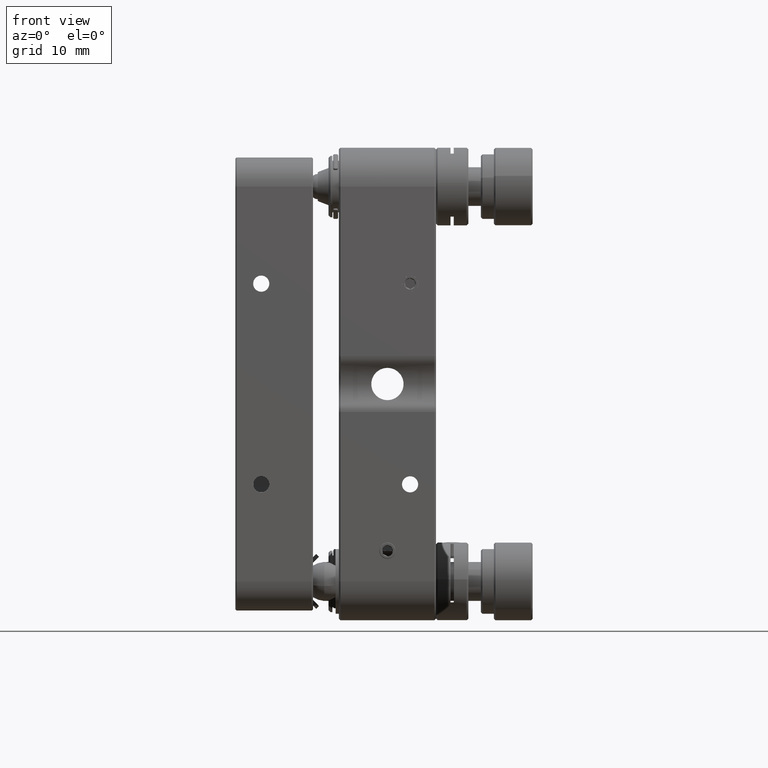
[diagram: clean part render]
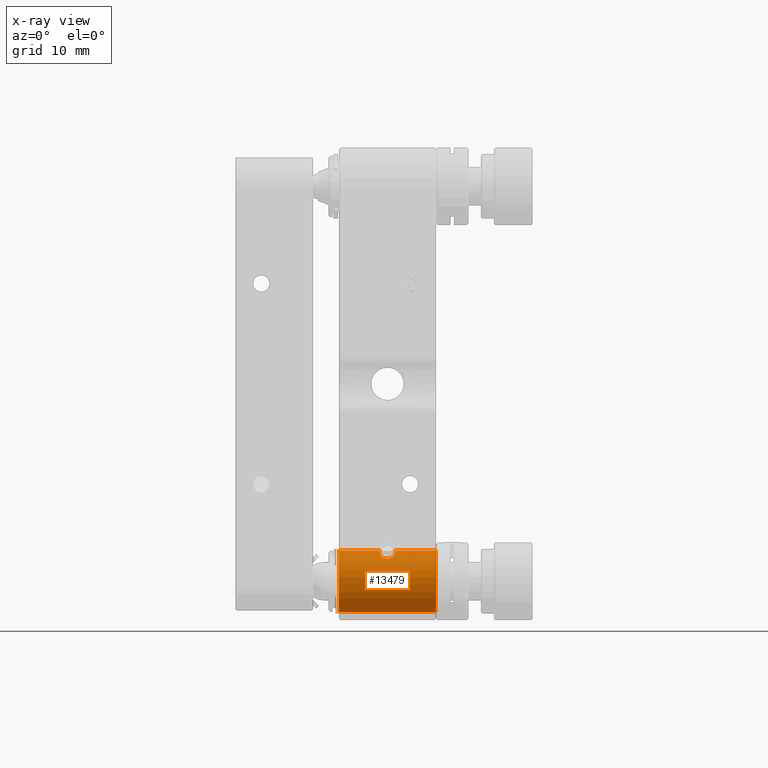
[diagram: x-ray — body ghosted, one internal face saturated and labeled with its STEP entity id]
A machine part, front view, then the same camera in x-ray: the body is ghosted and one INTERNAL B-rep face — a face not visible from any outside direction — is saturated and labeled: STEP entity #13479.
In plain terms, the highlighted cylindrical surface (edge-blend (fillet) strip) has radius 4.75 mm, axis along (1, -0, -0).
Its self-contained STEP definition (entity closure, byte-faithful):
#6 = LINE ( 'NONE', #6885, #7865 ) ;
#104 = CARTESIAN_POINT ( 'NONE',  ( -0.4756193229141988943, -31.81707137695323340, 21.50000000000000000 ) ) ;
#399 = ORIENTED_EDGE ( 'NONE', *, *, #3357, .T. ) ;
#731 = ORIENTED_EDGE ( 'NONE', *, *, #4242, .T. ) ;
#954 = CARTESIAN_POINT ( 'NONE',  ( 8.266447908790146570, -32.99478359527260096, 26.10480191768682445 ) ) ;
#971 = DIRECTION ( 'NONE',  ( 0.000000000000000000, 0.000000000000000000, -1.000000000000000000 ) ) ;
#1287 = CARTESIAN_POINT ( 'NONE',  ( 8.274380677085797942, -31.81707137695322629, 26.24999999999999645 ) ) ;
#1383 = CARTESIAN_POINT ( 'NONE',  ( 5.772816409324978082, -32.49844991003594430, 26.21310298393942162 ) ) ;
#1457 = CARTESIAN_POINT ( 'NONE',  ( 6.937474785350574713, -35.02837952161953439, 25.00000000000000355 ) ) ;
#1501 = CYLINDRICAL_SURFACE ( 'NONE', #7667, 4.749999999999997335 ) ;
#1508 = EDGE_CURVE ( 'NONE', #13158, #5419, #6, .T. ) ;
#1837 = DIRECTION ( 'NONE',  ( 1.000000000000000000, 0.000000000000000000, 0.000000000000000000 ) ) ;
#2022 = VECTOR ( 'NONE', #7926, 1000.000000000000000 ) ;
#2033 = CARTESIAN_POINT ( 'NONE',  ( -0.4756193229141988943, -31.81707137695323340, 26.24999999999999645 ) ) ;
#2197 = CARTESIAN_POINT ( 'NONE',  ( 7.367683017740924711, -34.98809704542016163, 25.03779354777339705 ) ) ;
#2471 = CARTESIAN_POINT ( 'NONE',  ( 14.52438067708579972, -31.81707137695323340, 16.75000000000000000 ) ) ;
#2515 = FACE_OUTER_BOUND ( 'NONE', #10598, .T. ) ;
#2552 = CARTESIAN_POINT ( 'NONE',  ( 5.877621971035821957, -33.95123944907304292, 25.74692563983460403 ) ) ;
#2637 = CARTESIAN_POINT ( 'NONE',  ( 5.913791038854941284, -34.10118877958147721, 25.66796418528802803 ) ) ;
#2716 = CARTESIAN_POINT ( 'NONE',  ( 5.774380677085802382, -31.81707137695322629, 26.24999999999999645 ) ) ;
#2791 = CARTESIAN_POINT ( 'NONE',  ( 5.774380677085807712, -32.16085358018470686, 26.24999999999999289 ) ) ;
#2798 = EDGE_CURVE ( 'NONE', #9518, #4068, #9833, .T. ) ;
#3213 = CARTESIAN_POINT ( 'NONE',  ( -0.4756193229141988943, -31.81707137695323340, 16.75000000000000000 ) ) ;
#3221 = CARTESIAN_POINT ( 'NONE',  ( 8.274380677085895641, -32.16080366972634863, 26.24999999999999289 ) ) ;
#3357 = EDGE_CURVE ( 'NONE', #4571, #13158, #6024, .T. ) ;
#3691 = DIRECTION ( 'NONE',  ( 1.000000000000000000, -0.000000000000000000, -0.000000000000000000 ) ) ;
#3802 = CARTESIAN_POINT ( 'NONE',  ( 6.227624557533640193, -34.68820491347310053, 25.28474912183112266 ) ) ;
#4068 = VERTEX_POINT ( 'NONE', #4682 ) ;
#4242 = EDGE_CURVE ( 'NONE', #14857, #4571, #14771, .T. ) ;
#4329 = CARTESIAN_POINT ( 'NONE',  ( 8.239465688889247019, -33.48324851117146039, 25.95147328426872591 ) ) ;
#4405 = CARTESIAN_POINT ( 'NONE',  ( 8.136217245567326728, -34.09712498223685628, 25.67024326163252113 ) ) ;
#4490 = CARTESIAN_POINT ( 'NONE',  ( 8.274380677085797942, -31.81707137695322629, 26.24999999999999645 ) ) ;
#4571 = VERTEX_POINT ( 'NONE', #6271 ) ;
#4682 = CARTESIAN_POINT ( 'NONE',  ( -0.4756193229141988943, -31.81707137695323340, 16.75000000000000000 ) ) ;
#4874 = DIRECTION ( 'NONE',  ( 0.000000000000000000, 0.000000000000000000, -1.000000000000000000 ) ) ;
#4989 = CARTESIAN_POINT ( 'NONE',  ( 5.785510808013902384, -33.16141966311466405, 26.06840717625513903 ) ) ;
#5190 = DIRECTION ( 'NONE',  ( 1.000000000000000000, 0.000000000000000000, 0.000000000000000000 ) ) ;
#5230 = EDGE_CURVE ( 'NONE', #5419, #8265, #7762, .T. ) ;
#5419 = VERTEX_POINT ( 'NONE', #11072 ) ;
#6024 = B_SPLINE_CURVE_WITH_KNOTS ( 'NONE', 3,
 ( #11607, #15299, #2197, #13983, #11461, #10511, #6976, #4405, #12728, #15065, #4329, #7938, #954, #15224, #3221, #4490 ),
 .UNSPECIFIED., .F., .F.,
 ( 4, 2, 2, 2, 2, 2, 2, 4 ),
 ( 0.004067470904697190540, 0.004576489090368939319, 0.005085507276040688099, 0.005594525461712437746, 0.006103543647384188260, 0.006612561833055937907, 0.007121580018727688421, 0.008139616390071208532 ),
 .UNSPECIFIED. ) ;
#6229 = CARTESIAN_POINT ( 'NONE',  ( 7.024380677085800606, -35.02837952161951307, 25.00000000000000000 ) ) ;
#6255 = AXIS2_PLACEMENT_3D ( 'NONE', #9200, #1837, #971 ) ;
#6271 = CARTESIAN_POINT ( 'NONE',  ( 7.024380677085800606, -35.02837952161951307, 25.00000000000000000 ) ) ;
#6308 = LINE ( 'NONE', #11095, #13232 ) ;
#6309 = CARTESIAN_POINT ( 'NONE',  ( 6.280036784473488787, -34.74183397501412429, 25.24327732500223220 ) ) ;
#6885 = CARTESIAN_POINT ( 'NONE',  ( -0.4756193229141988943, -31.81707137695323340, 26.24999999999999645 ) ) ;
#6976 = CARTESIAN_POINT ( 'NONE',  ( 8.031110296605527665, -34.38022737462057421, 25.50247481388455029 ) ) ;
#7115 = CARTESIAN_POINT ( 'NONE',  ( 5.774380677085802382, -31.81707137695322629, 26.24999999999999645 ) ) ;
#7349 = ORIENTED_EDGE ( 'NONE', *, *, #9655, .F. ) ;
#7418 = CARTESIAN_POINT ( 'NONE',  ( 6.688701140202639728, -34.98096520564035217, 25.04300984356170900 ) ) ;
#7667 = AXIS2_PLACEMENT_3D ( 'NONE', #14367, #3691, #9490 ) ;
#7762 = CIRCLE ( 'NONE', #6255, 4.749999999999997335 ) ;
#7865 = VECTOR ( 'NONE', #15289, 1000.000000000000000 ) ;
#7926 = DIRECTION ( 'NONE',  ( 1.000000000000000000, -0.000000000000000000, -0.000000000000000000 ) ) ;
#7938 = CARTESIAN_POINT ( 'NONE',  ( 8.261057941839627716, -33.15873402100430667, 26.05979188041601802 ) ) ;
#8265 = VERTEX_POINT ( 'NONE', #2471 ) ;
#8445 = ORIENTED_EDGE ( 'NONE', *, *, #5230, .T. ) ;
#8583 = AXIS2_PLACEMENT_3D ( 'NONE', #104, #5190, #4874 ) ;
#8587 = CARTESIAN_POINT ( 'NONE',  ( 6.609472864492659916, -34.95267735220944161, 25.06828363015662120 ) ) ;
#9104 = ORIENTED_EDGE ( 'NONE', *, *, #1508, .T. ) ;
#9200 = CARTESIAN_POINT ( 'NONE',  ( 14.52438067708579972, -31.81707137695323340, 21.50000000000000000 ) ) ;
#9490 = DIRECTION ( 'NONE',  ( 0.000000000000000000, 0.000000000000000000, -1.000000000000000000 ) ) ;
#9518 = VERTEX_POINT ( 'NONE', #2033 ) ;
#9655 = EDGE_CURVE ( 'NONE', #4068, #8265, #15052, .T. ) ;
#9833 = CIRCLE ( 'NONE', #8583, 4.749999999999997335 ) ;
#9839 = CARTESIAN_POINT ( 'NONE',  ( 6.398788140232160693, -34.83875627774230566, 25.16548519942929119 ) ) ;
#10511 = CARTESIAN_POINT ( 'NONE',  ( 7.963068264825627018, -34.51101379906497613, 25.41486608075589970 ) ) ;
#10598 = EDGE_LOOP ( 'NONE', ( #14855, #12509, #731, #399, #9104, #8445, #7349 ) ) ;
#11072 = CARTESIAN_POINT ( 'NONE',  ( 14.52438067708579972, -31.81707137695323340, 26.24999999999999645 ) ) ;
#11095 = CARTESIAN_POINT ( 'NONE',  ( -0.4756193229141988943, -31.81707137695323340, 26.24999999999999645 ) ) ;
#11461 = CARTESIAN_POINT ( 'NONE',  ( 7.776210200934512429, -34.74466428562831766, 25.24335437341720834 ) ) ;
#11607 = CARTESIAN_POINT ( 'NONE',  ( 7.024380677085800606, -35.02837952161951307, 25.00000000000000000 ) ) ;
#11665 = EDGE_CURVE ( 'NONE', #9518, #14857, #6308, .T. ) ;
#12210 = CARTESIAN_POINT ( 'NONE',  ( 6.852619991101598806, -35.01860927441679650, 25.00903092062240418 ) ) ;
#12365 = CARTESIAN_POINT ( 'NONE',  ( 6.465578446869503004, -34.88204516534373312, 25.12913330890247110 ) ) ;
#12509 = ORIENTED_EDGE ( 'NONE', *, *, #11665, .T. ) ;
#12728 = CARTESIAN_POINT ( 'NONE',  ( 8.171551306636114731, -33.94925764507306809, 25.74790469852990427 ) ) ;
#13158 = VERTEX_POINT ( 'NONE', #1287 ) ;
#13232 = VECTOR ( 'NONE', #14560, 1000.000000000000000 ) ;
#13306 = CARTESIAN_POINT ( 'NONE',  ( 5.799651201982530146, -33.49049861294792407, 25.95828939024733728 ) ) ;
#13479 = ADVANCED_FACE ( 'NONE', ( #2515 ), #1501, .F. ) ;
#13983 = CARTESIAN_POINT ( 'NONE',  ( 7.657626212500818319, -34.84522982215274567, 25.16082550902252990 ) ) ;
#14367 = CARTESIAN_POINT ( 'NONE',  ( -0.4756193229141988943, -31.81707137695323340, 21.50000000000000000 ) ) ;
#14560 = DIRECTION ( 'NONE',  ( 1.000000000000000000, -0.000000000000000000, -0.000000000000000000 ) ) ;
#14561 = CARTESIAN_POINT ( 'NONE',  ( 6.087095921981153346, -34.51331795472845698, 25.41327090689588175 ) ) ;
#14723 = CARTESIAN_POINT ( 'NONE',  ( 6.018496391105379928, -34.38178476941248363, 25.50142011957918697 ) ) ;
#14771 = B_SPLINE_CURVE_WITH_KNOTS ( 'NONE', 3,
 ( #2716, #2791, #1383, #4989, #13306, #2552, #2637, #14723, #14561, #3802, #6309, #9839, #12365, #8587, #7418, #12210, #1457, #6229 ),
 .UNSPECIFIED., .F., .F.,
 ( 4, 2, 2, 2, 2, 2, 2, 2, 4 ),
 ( 0.000000000000000000, 0.001016867726174299586, 0.002033735452348599173, 0.002542169315435751243, 0.003050603178522903747, 0.003304820110066475445, 0.003559037041610047143, 0.003813253973153618841, 0.004067470904697190540 ),
 .UNSPECIFIED. ) ;
#14855 = ORIENTED_EDGE ( 'NONE', *, *, #2798, .F. ) ;
#14857 = VERTEX_POINT ( 'NONE', #7115 ) ;
#15052 = LINE ( 'NONE', #3213, #2022 ) ;
#15065 = CARTESIAN_POINT ( 'NONE',  ( 8.223261015785107375, -33.64278782146890023, 25.88835642057208020 ) ) ;
#15224 = CARTESIAN_POINT ( 'NONE',  ( 8.275937045519702551, -32.49816547650827658, 26.21311339867772716 ) ) ;
#15289 = DIRECTION ( 'NONE',  ( 1.000000000000000000, -0.000000000000000000, -0.000000000000000000 ) ) ;
#15299 = CARTESIAN_POINT ( 'NONE',  ( 7.198392215446580700, -35.02837952161952728, 25.00000000000000355 ) ) ;